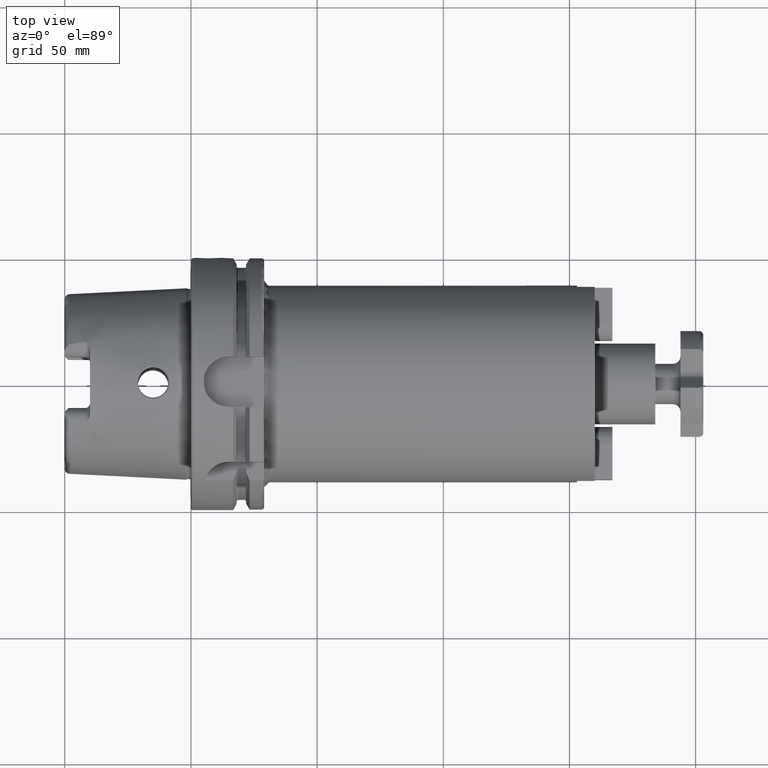
[diagram: clean part render]
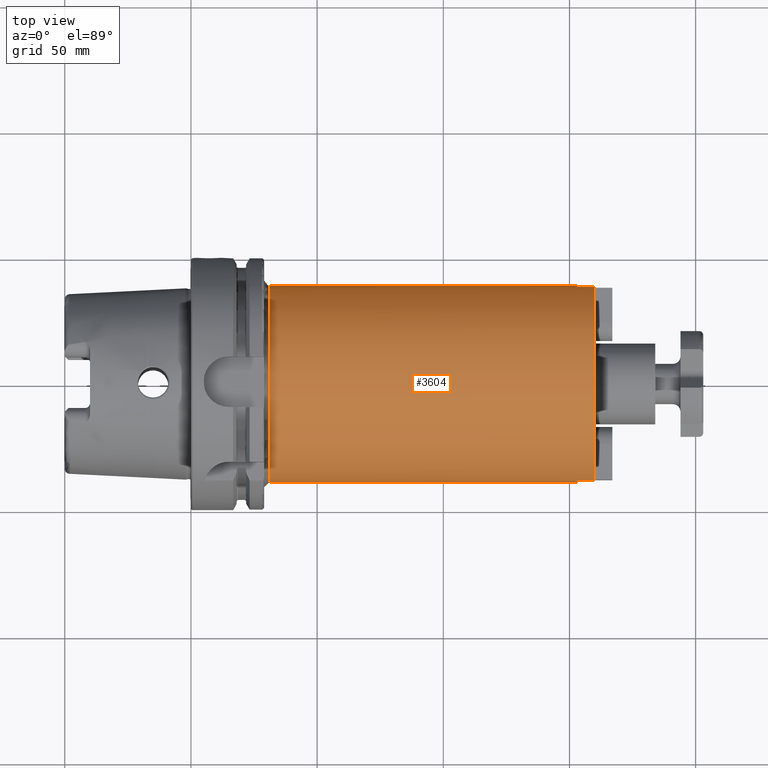
[diagram: same view with one face highlighted and labeled with its STEP entity id]
A machine part, top view. The second image highlights one B-rep face of the part: STEP entity #3604.
In plain terms, the highlighted cylindrical surface (bore or boss wall) has radius 39 mm, axis along (1, 0, 0).
Its self-contained STEP definition (entity closure, byte-faithful):
#793=CYLINDRICAL_SURFACE('',#3962,39.);
#858=FACE_OUTER_BOUND('',#1042,.T.);
#1042=EDGE_LOOP('',(#2678,#2679,#2680,#2681,#2682,#2683,#2684,#2685,#2686,
#2687,#2688,#2689,#2690));
#1241=LINE('',#5572,#1433);
#1249=LINE('',#5601,#1441);
#1251=LINE('',#5605,#1443);
#1252=LINE('',#5612,#1444);
#1253=LINE('',#5616,#1445);
#1433=VECTOR('',#4447,10.);
#1441=VECTOR('',#4477,10.);
#1443=VECTOR('',#4481,39.);
#1444=VECTOR('',#4488,10.);
#1445=VECTOR('',#4491,10.);
#1625=CIRCLE('',#3952,39.);
#1627=CIRCLE('',#3954,39.);
#1631=CIRCLE('',#3963,39.);
#1632=CIRCLE('',#3964,39.);
#1633=CIRCLE('',#3965,39.);
#1634=CIRCLE('',#3966,39.);
#1635=CIRCLE('',#3967,39.);
#1855=VERTEX_POINT('',#5570);
#1856=VERTEX_POINT('',#5571);
#1859=VERTEX_POINT('',#5579);
#1861=VERTEX_POINT('',#5583);
#1866=VERTEX_POINT('',#5600);
#1867=VERTEX_POINT('',#5604);
#1868=VERTEX_POINT('',#5606);
#1869=VERTEX_POINT('',#5609);
#1870=VERTEX_POINT('',#5611);
#1871=VERTEX_POINT('',#5613);
#1872=VERTEX_POINT('',#5615);
#2170=EDGE_CURVE('',#1855,#1856,#1241,.T.);
#2174=EDGE_CURVE('',#1856,#1859,#1625,.T.);
#2177=EDGE_CURVE('',#1859,#1861,#1627,.T.);
#2184=EDGE_CURVE('',#1861,#1866,#1249,.T.);
#2186=EDGE_CURVE('',#1859,#1867,#1251,.T.);
#2187=EDGE_CURVE('',#1868,#1867,#1631,.T.);
#2188=EDGE_CURVE('',#1867,#1868,#1632,.T.);
#2189=EDGE_CURVE('',#1869,#1866,#1633,.T.);
#2190=EDGE_CURVE('',#1869,#1870,#1252,.T.);
#2191=EDGE_CURVE('',#1870,#1871,#1634,.T.);
#2192=EDGE_CURVE('',#1871,#1872,#1253,.T.);
#2193=EDGE_CURVE('',#1855,#1872,#1635,.T.);
#2678=ORIENTED_EDGE('',*,*,#2170,.T.);
#2679=ORIENTED_EDGE('',*,*,#2174,.T.);
#2680=ORIENTED_EDGE('',*,*,#2186,.T.);
#2681=ORIENTED_EDGE('',*,*,#2187,.F.);
#2682=ORIENTED_EDGE('',*,*,#2188,.F.);
#2683=ORIENTED_EDGE('',*,*,#2186,.F.);
#2684=ORIENTED_EDGE('',*,*,#2177,.T.);
#2685=ORIENTED_EDGE('',*,*,#2184,.T.);
#2686=ORIENTED_EDGE('',*,*,#2189,.F.);
#2687=ORIENTED_EDGE('',*,*,#2190,.T.);
#2688=ORIENTED_EDGE('',*,*,#2191,.T.);
#2689=ORIENTED_EDGE('',*,*,#2192,.T.);
#2690=ORIENTED_EDGE('',*,*,#2193,.F.);
#3604=ADVANCED_FACE('',(#858),#793,.T.);
#3952=AXIS2_PLACEMENT_3D('',#5580,#4453,#4454);
#3954=AXIS2_PLACEMENT_3D('',#5585,#4458,#4459);
#3962=AXIS2_PLACEMENT_3D('',#5603,#4479,#4480);
#3963=AXIS2_PLACEMENT_3D('',#5607,#4482,#4483);
#3964=AXIS2_PLACEMENT_3D('',#5608,#4484,#4485);
#3965=AXIS2_PLACEMENT_3D('',#5610,#4486,#4487);
#3966=AXIS2_PLACEMENT_3D('',#5614,#4489,#4490);
#3967=AXIS2_PLACEMENT_3D('',#5617,#4492,#4493);
#4447=DIRECTION('',(-1.,0.,0.));
#4453=DIRECTION('center_axis',(-1.,0.,0.));
#4454=DIRECTION('ref_axis',(0.,1.,0.));
#4458=DIRECTION('center_axis',(-1.,0.,0.));
#4459=DIRECTION('ref_axis',(0.,1.,0.));
#4477=DIRECTION('',(1.,0.,0.));
#4479=DIRECTION('center_axis',(1.,0.,0.));
#4480=DIRECTION('ref_axis',(0.,1.,0.));
#4481=DIRECTION('',(-1.,0.,0.));
#4482=DIRECTION('center_axis',(-1.,0.,0.));
#4483=DIRECTION('ref_axis',(0.,-1.,-1.22464679914735E-16));
#4484=DIRECTION('center_axis',(-1.,0.,0.));
#4485=DIRECTION('ref_axis',(0.,-1.,-1.22464679914735E-16));
#4486=DIRECTION('center_axis',(1.,0.,0.));
#4487=DIRECTION('ref_axis',(0.,0.,-1.));
#4488=DIRECTION('',(-1.,0.,0.));
#4489=DIRECTION('center_axis',(-1.,0.,0.));
#4490=DIRECTION('ref_axis',(0.,1.,0.));
#4491=DIRECTION('',(1.,0.,0.));
#4492=DIRECTION('center_axis',(1.,0.,0.));
#4493=DIRECTION('ref_axis',(0.,0.,-1.));
#5570=CARTESIAN_POINT('',(160.,-38.3666521865018,-7.));
#5571=CARTESIAN_POINT('',(153.,-38.3666521865018,-7.));
#5572=CARTESIAN_POINT('',(94.5,-38.3666521865018,-7.));
#5579=CARTESIAN_POINT('',(153.,-39.,-4.77612251667468E-15));
#5580=CARTESIAN_POINT('Origin',(153.,0.,0.));
#5583=CARTESIAN_POINT('',(153.,-38.3666521865018,7.00000000000001));
#5585=CARTESIAN_POINT('Origin',(153.,0.,0.));
#5600=CARTESIAN_POINT('',(160.,-38.3666521865018,7.00000000000001));
#5601=CARTESIAN_POINT('',(94.5,-38.3666521865018,7.00000000000001));
#5603=CARTESIAN_POINT('Origin',(94.5,0.,0.));
#5604=CARTESIAN_POINT('',(31.,-39.,-4.77612251667468E-15));
#5605=CARTESIAN_POINT('',(94.5,-39.,-4.77612251667468E-15));
#5606=CARTESIAN_POINT('',(31.,-4.77612251667468E-15,-39.));
#5607=CARTESIAN_POINT('Origin',(31.,0.,0.));
#5608=CARTESIAN_POINT('Origin',(31.,0.,0.));
#5609=CARTESIAN_POINT('',(160.,38.3666521865018,7.00000000000001));
#5610=CARTESIAN_POINT('Origin',(160.,0.,0.));
#5611=CARTESIAN_POINT('',(153.,38.3666521865018,7.00000000000001));
#5612=CARTESIAN_POINT('',(94.5,38.3666521865018,7.00000000000001));
#5613=CARTESIAN_POINT('',(153.,38.3666521865018,-7.));
#5614=CARTESIAN_POINT('Origin',(153.,0.,0.));
#5615=CARTESIAN_POINT('',(160.,38.3666521865018,-7.));
#5616=CARTESIAN_POINT('',(94.5,38.3666521865018,-7.));
#5617=CARTESIAN_POINT('Origin',(160.,0.,0.));